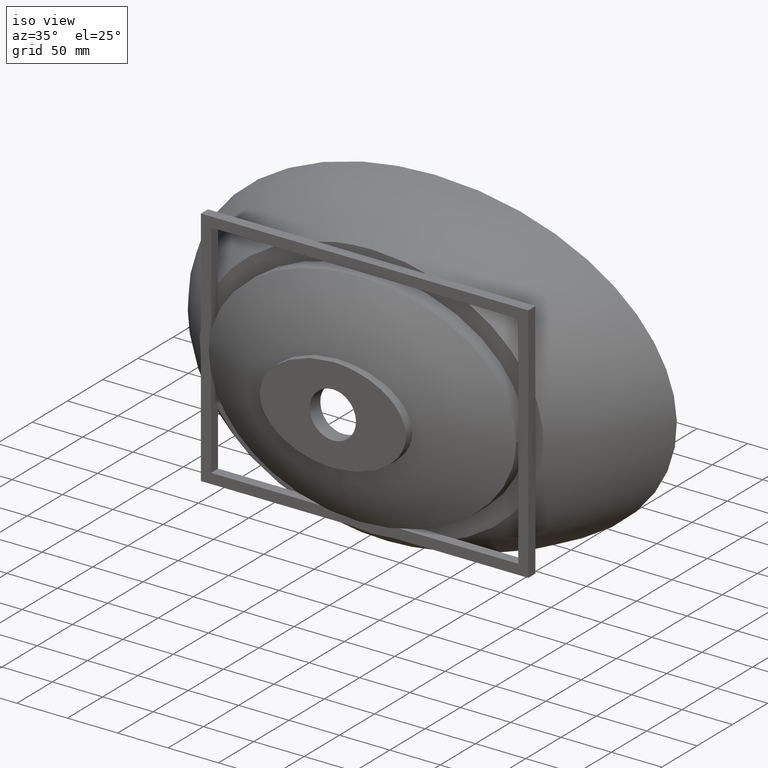
[diagram: clean part render]
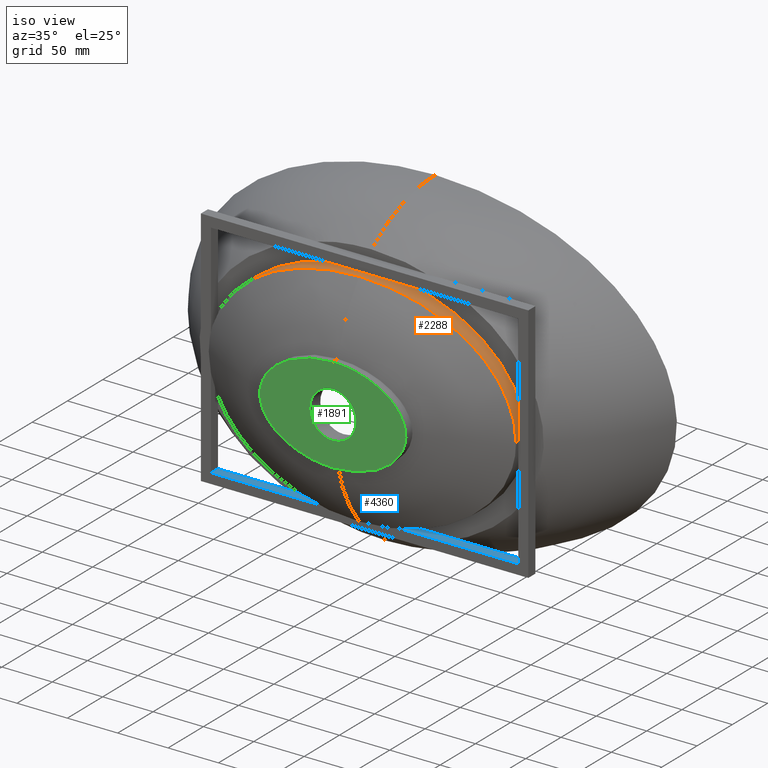
[diagram: same view with three faces highlighted in distinct colors, each labeled with its STEP entity id]
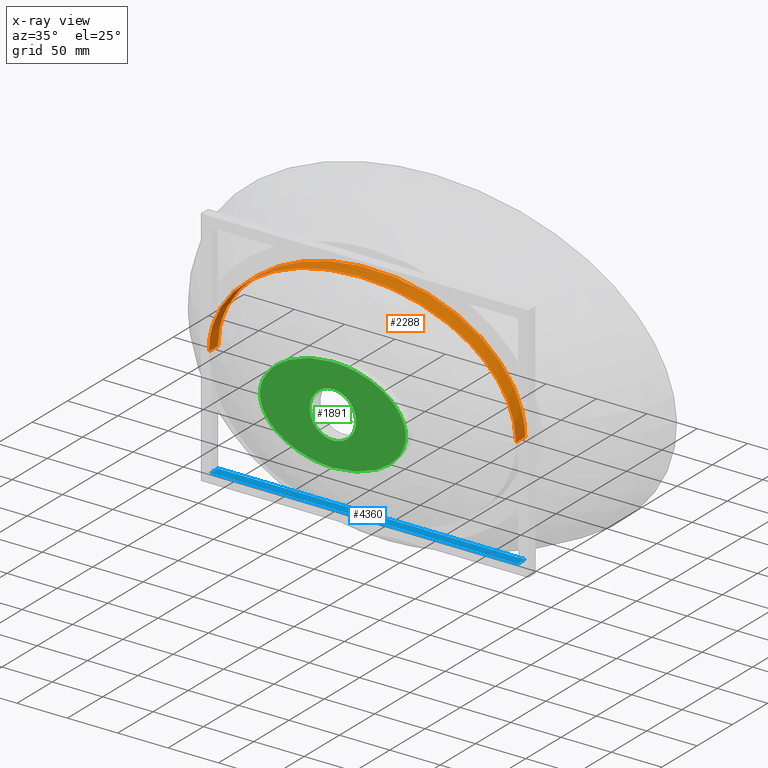
[diagram: x-ray of the same camera — body ghosted, the three highlighted faces saturated]
A machine part, iso view with three faces highlighted in distinct colors.
The next image is the same camera in x-ray (body ghosted, the three faces saturated) — at least one of them is partly hidden behind the body in this view.
Their STEP definitions:

[orange] entity #2288 — the highlighted face is a freeform B-spline surface patch.
#19 = CARTESIAN_POINT ( 'NONE',  ( -47.21094760882052600, -106.9539288248442500, 104.6452170759292500 ) ) ;
#34 = CARTESIAN_POINT ( 'NONE',  ( -102.8157293957905800, -105.0741573306559100, 81.31534038125737100 ) ) ;
#42 = CARTESIAN_POINT ( 'NONE',  ( -152.5000000000000000, -107.7114558978679600, 0.0000000000000000000 ) ) ;
#48 = CARTESIAN_POINT ( 'NONE',  ( -141.4467458287763000, -103.5170516779518100, 41.31846232177143500 ) ) ;
#66 = CARTESIAN_POINT ( 'NONE',  ( -152.4776760901988300, -103.1183717623395500, 2.174257026469797800 ) ) ;
#81 = CARTESIAN_POINT ( 'NONE',  ( 136.2205230772673300, -103.7245803052706100, 49.46187292888997400 ) ) ;
#98 = CARTESIAN_POINT ( 'NONE',  ( 113.2299427583061500, -104.6573816407069200, 73.77093452730190400 ) ) ;
#116 = CARTESIAN_POINT ( 'NONE',  ( 59.70084352162600500, -106.6061840035712900, 101.2729694608488000 ) ) ;
#137 = CARTESIAN_POINT ( 'NONE',  ( 4.334337529297746600, -107.5993585644402200, 109.9583377973702600 ) ) ;
#163 = VERTEX_POINT ( 'NONE', #1824 ) ;
#201 = B_SPLINE_CURVE_WITH_KNOTS ( 'NONE', 3,
 ( #3923, #3237, #1154, #3657, #1528, #4002, #1901, #4363, #2253, #81, #2616, #447, #2957, #820, #3319, #1168, #3670, #1545, #4016, #1914, #4377, #2273, #98, #2631, #467, #2974, #838, #3336, #1187, #3685, #1563, #4036, #1929, #4391, #2290, #116, #2644, #485, #2992, #856, #3350, #1207, #3706, #1581, #4051, #1951, #4410, #2304, #137, #2662, #504, #3007 ),
 .UNSPECIFIED., .F., .F.,
 ( 4, 2, 2, 2, 2, 2, 2, 2, 2, 2, 2, 2, 2, 2, 2, 2, 2, 2, 2, 2, 2, 2, 2, 2, 2, 4 ),
 ( 0.6218557091423927400, 0.6348088261114964700, 0.6477619430806003100, 0.6607150600497040400, 0.6736681770188077700, 0.6769064562610837000, 0.6801447355033596300, 0.6866212939879116100, 0.6930978524724634700, 0.6963361317147394000, 0.6995744109570153400, 0.7125275279261191800, 0.7254806448952231300, 0.7319572033797749900, 0.7384337618643269700, 0.7513868788334309200, 0.7578634373179828900, 0.7643399958025348700, 0.7772931127716387100, 0.7837696712561906800, 0.7902462297407426600, 0.8031993467098466100, 0.8161524636789504500, 0.8226290221635024200, 0.8258673014057784600, 0.8291055806480544000 ),
 .UNSPECIFIED. ) ;
#211 = EDGE_CURVE ( 'NONE', #4222, #4467, #3229, .T. ) ;
#263 = CARTESIAN_POINT ( 'NONE',  ( -152.5000000000000000, -90.00000000000000000, 0.0000000000000000000 ) ) ;
#384 = CARTESIAN_POINT ( 'NONE',  ( -59.73221709020792500, -106.6052472913845300, 101.2635639697474400 ) ) ;
#403 = CARTESIAN_POINT ( 'NONE',  ( -111.6001920501708900, -104.7231049065366100, 74.98831010379477400 ) ) ;
#417 = CARTESIAN_POINT ( 'NONE',  ( -145.2496828322798000, -103.3689984135023400, 33.57969500923717700 ) ) ;
#432 = CARTESIAN_POINT ( 'NONE',  ( -152.5000000000000000, -103.1179339888799100, -2.712701683365386100E-014 ) ) ;
#447 = CARTESIAN_POINT ( 'NONE',  ( 134.3128390181504700, -103.8007698096082500, 52.10545488534482700 ) ) ;
#467 = CARTESIAN_POINT ( 'NONE',  ( 102.7819091945179400, -105.0754729775269400, 81.33720297362180000 ) ) ;
#485 = CARTESIAN_POINT ( 'NONE',  ( 49.27295316640021400, -106.8982172220595900, 104.1124357507345300 ) ) ;
#504 = CARTESIAN_POINT ( 'NONE',  ( 1.083104370301572400, -107.6058209720354700, 109.9999999999999900 ) ) ;
#633 = CARTESIAN_POINT ( 'NONE',  ( -152.5000000000000000, -90.00000000000000000, 220.0000000000404200 ) ) ;
#657 = B_SPLINE_CURVE_WITH_KNOTS ( 'NONE', 3,
 ( #2854, #742, #3594, #1465, #3938, #1832, #4296, #2191, #19, #2553, #384, #2893, #761, #3255, #1110, #3611, #1481, #3956, #1851, #4313, #2209, #34, #2568, #403, #2910, #774, #3271, #1124, #3626, #1497, #3972, #1867, #4327, #2223, #48, #2582, #417, #2925, #788, #3287, #1141, #3643, #1512, #3987, #1885, #4344, #2237, #66, #2598, #432 ),
 .UNSPECIFIED., .F., .F.,
 ( 4, 2, 2, 2, 2, 2, 2, 2, 2, 2, 2, 2, 2, 2, 2, 2, 2, 2, 2, 2, 2, 2, 2, 2, 4 ),
 ( 0.0000000000000000000, 0.02594114682493809200, 0.03242643353117261000, 0.03891172023740711900, 0.05188229364987615600, 0.06485286706234520700, 0.07133815376857972900, 0.07782344047481423700, 0.09079401388728324000, 0.09727930059351774800, 0.1037645872997522400, 0.1167351607122212700, 0.1232204474184557800, 0.1297057341246903300, 0.1361910208309248200, 0.1426763075371593700, 0.1556468809496283600, 0.1686174543620974100, 0.1751027410683319000, 0.1783453844214491800, 0.1815880277745664200, 0.1945586011870354100, 0.2010438878932699300, 0.2042865312463871800, 0.2075291745995044000 ),
 .UNSPECIFIED. ) ;
#716 = EDGE_CURVE ( 'NONE', #163, #2989, #1478, .T. ) ;
#742 = CARTESIAN_POINT ( 'NONE',  ( -8.676512244503699700, -107.6058209720352500, 110.0000000000000100 ) ) ;
#749 = VECTOR ( 'NONE', #4414, 1000.000000000000000 ) ;
#761 = CARTESIAN_POINT ( 'NONE',  ( -67.94793277621840800, -106.3439447792996300, 98.49148686861001100 ) ) ;
#774 = CARTESIAN_POINT ( 'NONE',  ( -116.6431517802518400, -104.5173322539739200, 70.88357365802966100 ) ) ;
#785 = CARTESIAN_POINT ( 'NONE',  ( 152.5000000000000000, -110.0000000000000000, 1.347111479062088500E-014 ) ) ;
#788 = CARTESIAN_POINT ( 'NONE',  ( -146.9007280495855500, -103.3060746756643800, 29.55222393860068000 ) ) ;
#789 = EDGE_CURVE ( 'NONE', #2989, #4467, #4197, .T. ) ;
#804 = CARTESIAN_POINT ( 'NONE',  ( 152.4999999999999700, -103.1179339888799100, -2.028148956004923800E-011 ) ) ;
#820 = CARTESIAN_POINT ( 'NONE',  ( 131.6632380583510000, -103.9069083091808200, 55.53836592283718000 ) ) ;
#838 = CARTESIAN_POINT ( 'NONE',  ( 95.40884922777860300, -105.3588020330660700, 85.83040434643776000 ) ) ;
#856 = CARTESIAN_POINT ( 'NONE',  ( 42.94216134973313400, -107.0554426459462300, 105.5609591192645100 ) ) ;
#995 = CARTESIAN_POINT ( 'NONE',  ( 152.5000000000560500, -90.00000000000000000, 220.0000000000202100 ) ) ;
#1066 = ORIENTED_EDGE ( 'NONE', *, *, #789, .F. ) ;
#1110 = CARTESIAN_POINT ( 'NONE',  ( -74.01820938382819300, -106.1393472264828800, 96.18861272298015300 ) ) ;
#1124 = CARTESIAN_POINT ( 'NONE',  ( -121.4640201208732000, -104.3200127625210200, 66.53836821500826200 ) ) ;
#1141 = CARTESIAN_POINT ( 'NONE',  ( -148.0154038970343900, -103.2643725800580200, 26.50093839839103900 ) ) ;
#1154 = CARTESIAN_POINT ( 'NONE',  ( 152.1443245462052400, -103.1252960036092200, 8.637235796715513600 ) ) ;
#1168 = CARTESIAN_POINT ( 'NONE',  ( 127.4238688833118400, -104.0776083898679300, 60.46356866029361000 ) ) ;
#1184 = CARTESIAN_POINT ( 'NONE',  ( -152.5000000000000000, -90.00000000000000000, 0.0000000000000000000 ) ) ;
#1187 = CARTESIAN_POINT ( 'NONE',  ( 89.71204439020675600, -105.5734525107452000, 88.96895385205058900 ) ) ;
#1207 = CARTESIAN_POINT ( 'NONE',  ( 34.42921027590784200, -107.2422737976452400, 107.2070259430499000 ) ) ;
#1352 = CARTESIAN_POINT ( 'NONE',  ( 152.5000000000000000, -90.00000000000000000, -2.021035150178123300E-011 ) ) ;
#1465 = CARTESIAN_POINT ( 'NONE',  ( -28.04324115162153700, -107.3553623274767100, 108.1355673428161200 ) ) ;
#1478 = LINE ( 'NONE', #3671, #749 ) ;
#1481 = CARTESIAN_POINT ( 'NONE',  ( -83.93939597657498600, -105.7873049689716700, 91.90066293399441100 ) ) ;
#1497 = CARTESIAN_POINT ( 'NONE',  ( -126.0538980216587000, -104.1330771725551300, 61.93865218776821300 ) ) ;
#1512 = CARTESIAN_POINT ( 'NONE',  ( -150.7399929378285900, -103.1677465207586700, 17.20449692699166600 ) ) ;
#1528 = CARTESIAN_POINT ( 'NONE',  ( 149.7283907224696100, -103.2016190319381500, 21.30516012785558600 ) ) ;
#1545 = CARTESIAN_POINT ( 'NONE',  ( 123.6638840038082800, -104.2302835981276600, 64.37569192492019000 ) ) ;
#1563 = CARTESIAN_POINT ( 'NONE',  ( 79.98497554297956900, -105.9308092963599700, 93.71487022287003300 ) ) ;
#1581 = CARTESIAN_POINT ( 'NONE',  ( 21.58633281328593200, -107.4562118053617000, 108.9375904722939500 ) ) ;
#1705 = ORIENTED_EDGE ( 'NONE', *, *, #211, .T. ) ;
#1824 = CARTESIAN_POINT ( 'NONE',  ( -152.5000000000000000, -103.1179339888799100, -2.712701683365386100E-014 ) ) ;
#1832 = CARTESIAN_POINT ( 'NONE',  ( -34.46984672874642500, -107.2384302620420300, 107.1648464992287300 ) ) ;
#1851 = CARTESIAN_POINT ( 'NONE',  ( -91.64703560522517000, -105.5009884015446300, 87.93730495248478000 ) ) ;
#1867 = CARTESIAN_POINT ( 'NONE',  ( -131.8023748090430400, -103.9010944895151700, 55.46513832552796700 ) ) ;
#1885 = CARTESIAN_POINT ( 'NONE',  ( -152.0535377777324000, -103.1287824127465000, 8.685909458913247500 ) ) ;
#1901 = CARTESIAN_POINT ( 'NONE',  ( 145.3375724024504900, -103.3652841140806400, 33.56578649457423300 ) ) ;
#1914 = CARTESIAN_POINT ( 'NONE',  ( 121.3303298514614000, -104.3254992503073200, 66.64581802196875100 ) ) ;
#1929 = CARTESIAN_POINT ( 'NONE',  ( 71.96252654056350200, -106.2098077027540600, 96.99659850470108300 ) ) ;
#1951 = CARTESIAN_POINT ( 'NONE',  ( 10.81964250693972800, -107.5660306405004300, 109.7338984437282200 ) ) ;
#2191 = CARTESIAN_POINT ( 'NONE',  ( -42.99019720990384000, -107.0573845346477200, 105.5864160793444600 ) ) ;
#2209 = CARTESIAN_POINT ( 'NONE',  ( -97.29372879213666200, -105.2868884653572600, 84.72277817910553200 ) ) ;
#2223 = CARTESIAN_POINT ( 'NONE',  ( -139.2610785172215600, -103.6034789158861700, 45.00229953549508400 ) ) ;
#2237 = CARTESIAN_POINT ( 'NONE',  ( -152.3881539513957400, -103.1203959894361200, 4.350549441316229800 ) ) ;
#2253 = CARTESIAN_POINT ( 'NONE',  ( 139.2789920688459200, -103.6027621729884600, 44.97841484955407100 ) ) ;
#2271 = ORIENTED_EDGE ( 'NONE', *, *, #4196, .F. ) ;
#2273 = CARTESIAN_POINT ( 'NONE',  ( 116.5535588727159100, -104.5209043653406400, 71.03382807352173200 ) ) ;
#2288 = ADVANCED_FACE ( 'NONE', ( #3371 ), #3855, .T. ) ;
#2290 = CARTESIAN_POINT ( 'NONE',  ( 65.85836623636038200, -106.4119811033133900, 99.22695917087119700 ) ) ;
#2304 = CARTESIAN_POINT ( 'NONE',  ( 5.416464890457484100, -107.5955487044964500, 109.9333666819122500 ) ) ;
#2406 = DIRECTION ( 'NONE',  ( -0.0000000000000000000, 1.000000000000000000, -0.0000000000000000000 ) ) ;
#2462 = ORIENTED_EDGE ( 'NONE', *, *, #4124, .F. ) ;
#2553 = CARTESIAN_POINT ( 'NONE',  ( -55.58195125927349500, -106.7278618682454300, 102.4837657721602700 ) ) ;
#2568 = CARTESIAN_POINT ( 'NONE',  ( -106.3961657402937700, -104.9330908111283000, 78.88763881753172300 ) ) ;
#2582 = CARTESIAN_POINT ( 'NONE',  ( -144.3464476124809400, -103.4039359105354000, 35.54539787600448600 ) ) ;
#2598 = CARTESIAN_POINT ( 'NONE',  ( -152.4999999999999400, -103.1179339888795900, 1.086790460222202700 ) ) ;
#2616 = CARTESIAN_POINT ( 'NONE',  ( 135.5928204501816800, -103.7496238183420900, 50.35108296633379900 ) ) ;
#2631 = CARTESIAN_POINT ( 'NONE',  ( 106.3442002816259300, -104.9351485181515900, 78.92270733193807100 ) ) ;
#2644 = CARTESIAN_POINT ( 'NONE',  ( 55.55377050647419400, -106.7286727239066400, 102.4917489704871500 ) ) ;
#2662 = CARTESIAN_POINT ( 'NONE',  ( 2.168418855729685700, -107.6044946953325500, 109.9916544500752500 ) ) ;
#2768 = CARTESIAN_POINT ( 'NONE',  ( -152.5000000000000000, -107.7114558978679500, 220.0000000000404200 ) ) ;
#2817 = CARTESIAN_POINT ( 'NONE',  ( 152.5000000000000000, -90.00000000000000000, 1.347111479062088500E-014 ) ) ;
#2854 = CARTESIAN_POINT ( 'NONE',  ( -1.467507831434208200E-013, -107.6058209720354500, 110.0000000000000100 ) ) ;
#2893 = CARTESIAN_POINT ( 'NONE',  ( -65.90183468344145000, -106.4105833735043100, 99.21199856081429400 ) ) ;
#2910 = CARTESIAN_POINT ( 'NONE',  ( -113.3067431432306600, -104.6536091518684800, 73.64544273883366500 ) ) ;
#2925 = CARTESIAN_POINT ( 'NONE',  ( -146.5021393135017700, -103.3211793173533800, 30.56428555539846300 ) ) ;
#2957 = CARTESIAN_POINT ( 'NONE',  ( 133.6598730742947800, -103.8268996127023800, 52.97166395031433000 ) ) ;
#2974 = CARTESIAN_POINT ( 'NONE',  ( 97.27286558200900400, -105.2876857660061100, 84.73515037562256700 ) ) ;
#2989 = VERTEX_POINT ( 'NONE', #1184 ) ;
#2992 = CARTESIAN_POINT ( 'NONE',  ( 47.16929522320353400, -106.9523748883723500, 104.6180226975998400 ) ) ;
#3007 = CARTESIAN_POINT ( 'NONE',  ( -1.467507831434208200E-013, -107.6058209720354500, 110.0000000000000100 ) ) ;
#3129 = CARTESIAN_POINT ( 'NONE',  ( 152.5000000000560500, -107.7114558978679500, 220.0000000000202100 ) ) ;
#3229 = LINE ( 'NONE', #785, #3617 ) ;
#3237 = CARTESIAN_POINT ( 'NONE',  ( 152.5000000000011400, -103.1179339888813200, 4.345807120727315900 ) ) ;
#3255 = CARTESIAN_POINT ( 'NONE',  ( -72.00518466302543200, -106.2083566614544000, 96.98009667744038600 ) ) ;
#3271 = CARTESIAN_POINT ( 'NONE',  ( -118.2752929258622500, -104.4504605287348200, 69.46291978441627200 ) ) ;
#3287 = CARTESIAN_POINT ( 'NONE',  ( -147.6571339033850400, -103.2776782786321000, 27.52109228102632000 ) ) ;
#3319 = CARTESIAN_POINT ( 'NONE',  ( 130.2818708262735200, -103.9623764020314500, 57.20696758876280800 ) ) ;
#3336 = CARTESIAN_POINT ( 'NONE',  ( 91.62699707451351100, -105.5017411639504600, 87.94817456783776800 ) ) ;
#3350 = CARTESIAN_POINT ( 'NONE',  ( 40.81656469061390200, -107.1043965269272300, 105.9986859428960900 ) ) ;
#3371 = FACE_OUTER_BOUND ( 'NONE', #4632, .T. ) ;
#3491 = CARTESIAN_POINT ( 'NONE',  ( 152.5000000000000000, -107.7114558978679600, -2.021035150178123300E-011 ) ) ;
#3578 = CARTESIAN_POINT ( 'NONE',  ( -1.467507831434208200E-013, -107.6058209720354500, 110.0000000000000100 ) ) ;
#3594 = CARTESIAN_POINT ( 'NONE',  ( -17.30870294042426500, -107.5231098743388100, 109.4697902217282000 ) ) ;
#3611 = CARTESIAN_POINT ( 'NONE',  ( -80.00925420241006200, -105.9299317542742100, 93.70387288459406200 ) ) ;
#3617 = VECTOR ( 'NONE', #2406, 1000.000000000000000 ) ;
#3626 = CARTESIAN_POINT ( 'NONE',  ( -123.0206125037960000, -104.2564381094557600, 65.03447742259976400 ) ) ;
#3627 = CARTESIAN_POINT ( 'NONE',  ( -152.4999999999999700, -90.00000000000000000, 219.9999999999999700 ) ) ;
#3643 = CARTESIAN_POINT ( 'NONE',  ( -149.7065653852080500, -103.2024030942014600, 21.37710757107275900 ) ) ;
#3657 = CARTESIAN_POINT ( 'NONE',  ( 150.7585961419863200, -103.1671477129832100, 17.11692390235967300 ) ) ;
#3670 = CARTESIAN_POINT ( 'NONE',  ( 125.9472268137489000, -104.1374032859104400, 62.05156079667226300 ) ) ;
#3671 = CARTESIAN_POINT ( 'NONE',  ( -152.5000000000000000, -110.0000000000000000, 0.0000000000000000000 ) ) ;
#3685 = CARTESIAN_POINT ( 'NONE',  ( 83.91920468826069200, -105.7880423114165200, 91.91025834128694800 ) ) ;
#3706 = CARTESIAN_POINT ( 'NONE',  ( 30.15714869071390000, -107.3223801880023600, 107.8733437678833000 ) ) ;
#3711 = CARTESIAN_POINT ( 'NONE',  ( 152.4999999999999700, -90.00000000000000000, 219.9999999999999700 ) ) ;
#3725 = CARTESIAN_POINT ( 'NONE',  ( 152.5000000000000000, -90.00000000000000000, 1.347111479062088500E-014 ) ) ;
#3855 =( BOUNDED_SURFACE ( )  B_SPLINE_SURFACE ( 3, 1, ( 
 ( #42, #263 ),
 ( #2768, #633 ),
 ( #3129, #995 ),
 ( #3491, #1352 ) ),
 .UNSPECIFIED., .F., .F., .F. ) 
 B_SPLINE_SURFACE_WITH_KNOTS ( ( 4, 4 ),
 ( 2, 2 ),
 ( 0.0000000000000000000, 1.000000000000000000 ),
 ( 0.0000000000000000000, 1.000000000000000000 ),
 .UNSPECIFIED. ) 
 GEOMETRIC_REPRESENTATION_ITEM ( )  RATIONAL_B_SPLINE_SURFACE ( (
 ( 1.000000000000000000, 1.000000000000000000),
 ( 0.3333333333332720900, 0.3333333333332720900),
 ( 0.3333333333332720900, 0.3333333333332720900),
 ( 1.000000000000000000, 1.000000000000000000) ) ) 
 REPRESENTATION_ITEM ( '' )  SURFACE ( )  );
#3923 = CARTESIAN_POINT ( 'NONE',  ( 152.4999999999999700, -103.1179339888799100, -2.028148956004923800E-011 ) ) ;
#3938 = CARTESIAN_POINT ( 'NONE',  ( -30.18734356749832800, -107.3184662364017200, 107.8349196490530100 ) ) ;
#3956 = CARTESIAN_POINT ( 'NONE',  ( -89.73150866602331600, -105.5727261242892500, 88.95874003686961400 ) ) ;
#3972 = CARTESIAN_POINT ( 'NONE',  ( -127.5327798341146800, -104.0732061276086700, 60.34385317641725500 ) ) ;
#3987 = CARTESIAN_POINT ( 'NONE',  ( -151.7880706166286900, -103.1360375939584600, 10.83003607538460100 ) ) ;
#4002 = CARTESIAN_POINT ( 'NONE',  ( 147.0011724676383800, -103.3015216562842700, 29.57960097385453900 ) ) ;
#4016 = CARTESIAN_POINT ( 'NONE',  ( 122.8912787242001800, -104.2617758046688200, 65.14078094661049100 ) ) ;
#4032 = VERTEX_POINT ( 'NONE', #3578 ) ;
#4036 = CARTESIAN_POINT ( 'NONE',  ( 73.98223537351225300, -106.1405900708974200, 96.20306309105777100 ) ) ;
#4051 = CARTESIAN_POINT ( 'NONE',  ( 17.28757588546072900, -107.5099272707323600, 109.3354937477629500 ) ) ;
#4084 = CARTESIAN_POINT ( 'NONE',  ( -152.5000000000000000, -90.00000000000000000, 0.0000000000000000000 ) ) ;
#4124 = EDGE_CURVE ( 'NONE', #4032, #163, #657, .T. ) ;
#4196 = EDGE_CURVE ( 'NONE', #4222, #4032, #201, .T. ) ;
#4197 =( BOUNDED_CURVE ( )  B_SPLINE_CURVE ( 3, ( #4084, #3627, #3711, #3725 ),
 .UNSPECIFIED., .F., .T. ) 
 B_SPLINE_CURVE_WITH_KNOTS ( ( 4, 4 ),
 ( 0.0000000000000000000, 3.141592653589793100 ),
 .UNSPECIFIED. ) 
 CURVE ( )  GEOMETRIC_REPRESENTATION_ITEM ( )  RATIONAL_B_SPLINE_CURVE ( ( 1.000000000000000000, 0.3333333333333333700, 0.3333333333333333700, 1.000000000000000000 ) ) 
 REPRESENTATION_ITEM ( '' )  );
#4222 = VERTEX_POINT ( 'NONE', #804 ) ;
#4296 = CARTESIAN_POINT ( 'NONE',  ( -36.60775227221368800, -107.1952930823369300, 106.7954215232997100 ) ) ;
#4313 = CARTESIAN_POINT ( 'NONE',  ( -95.42776636193085000, -105.3580823767956600, 85.81945583805487800 ) ) ;
#4327 = CARTESIAN_POINT ( 'NONE',  ( -134.4390410526892500, -103.7955331075263200, 52.07573317691964100 ) ) ;
#4342 = ORIENTED_EDGE ( 'NONE', *, *, #716, .F. ) ;
#4344 = CARTESIAN_POINT ( 'NONE',  ( -152.3208382533243000, -103.1219859778414600, 5.439603625312035000 ) ) ;
#4363 = CARTESIAN_POINT ( 'NONE',  ( 141.4767843117024900, -103.5158686187347000, 41.26493347539426500 ) ) ;
#4377 = CARTESIAN_POINT ( 'NONE',  ( 120.5411826499896600, -104.3577630484618800, 67.38659972899638700 ) ) ;
#4391 = CARTESIAN_POINT ( 'NONE',  ( 67.90034263350770500, -106.3455091465667700, 98.50859021249483800 ) ) ;
#4410 = CARTESIAN_POINT ( 'NONE',  ( 8.660360181428632800, -107.5806273794008000, 109.8335786872853200 ) ) ;
#4414 = DIRECTION ( 'NONE',  ( -0.0000000000000000000, 1.000000000000000000, -0.0000000000000000000 ) ) ;
#4467 = VERTEX_POINT ( 'NONE', #2817 ) ;
#4632 = EDGE_LOOP ( 'NONE', ( #2271, #1705, #1066, #4342, #2462 ) ) ;

[blue] entity #4360 — the highlighted planar face has unit normal (0, 0, -1).
#152 = DIRECTION ( 'NONE',  ( -1.000000000000000000, 0.0000000000000000000, -0.0000000000000000000 ) ) ;
#319 = VERTEX_POINT ( 'NONE', #4107 ) ;
#589 = VECTOR ( 'NONE', #3822, 1000.000000000000000 ) ;
#616 = VERTEX_POINT ( 'NONE', #4533 ) ;
#631 = EDGE_CURVE ( 'NONE', #616, #319, #1811, .T. ) ;
#654 = LINE ( 'NONE', #1428, #1853 ) ;
#753 = CARTESIAN_POINT ( 'NONE',  ( -152.5000000000000000, -99.99999999999998600, -110.0000000000000000 ) ) ;
#858 = VECTOR ( 'NONE', #3688, 1000.000000000000000 ) ;
#964 = EDGE_LOOP ( 'NONE', ( #1640, #2047, #1233, #4355 ) ) ;
#1002 = VERTEX_POINT ( 'NONE', #2184 ) ;
#1233 = ORIENTED_EDGE ( 'NONE', *, *, #3264, .F. ) ;
#1428 = CARTESIAN_POINT ( 'NONE',  ( -152.5000000000000000, -99.99999999999998600, -110.0000000000000000 ) ) ;
#1640 = ORIENTED_EDGE ( 'NONE', *, *, #2562, .T. ) ;
#1811 = LINE ( 'NONE', #4160, #858 ) ;
#1842 = AXIS2_PLACEMENT_3D ( 'NONE', #1966, #3369, #152 ) ;
#1853 = VECTOR ( 'NONE', #2155, 1000.000000000000000 ) ;
#1966 = CARTESIAN_POINT ( 'NONE',  ( -152.5000000000000000, -99.99999999999998600, -110.0000000000000000 ) ) ;
#2047 = ORIENTED_EDGE ( 'NONE', *, *, #3876, .F. ) ;
#2155 = DIRECTION ( 'NONE',  ( 0.0000000000000000000, 1.000000000000000000, 0.0000000000000000000 ) ) ;
#2184 = CARTESIAN_POINT ( 'NONE',  ( -152.5000000000000000, -90.00000000000000000, -110.0000000000000000 ) ) ;
#2320 = PLANE ( 'NONE',  #1842 ) ;
#2562 = EDGE_CURVE ( 'NONE', #319, #1002, #3918, .T. ) ;
#2882 = DIRECTION ( 'NONE',  ( -1.000000000000000000, -0.0000000000000000000, -0.0000000000000000000 ) ) ;
#2943 = LINE ( 'NONE', #753, #3869 ) ;
#3264 = EDGE_CURVE ( 'NONE', #616, #4456, #2943, .T. ) ;
#3369 = DIRECTION ( 'NONE',  ( 0.0000000000000000000, 0.0000000000000000000, -1.000000000000000000 ) ) ;
#3688 = DIRECTION ( 'NONE',  ( 0.0000000000000000000, 1.000000000000000000, 0.0000000000000000000 ) ) ;
#3822 = DIRECTION ( 'NONE',  ( -1.000000000000000000, -0.0000000000000000000, -0.0000000000000000000 ) ) ;
#3869 = VECTOR ( 'NONE', #2882, 1000.000000000000000 ) ;
#3876 = EDGE_CURVE ( 'NONE', #4456, #1002, #654, .T. ) ;
#3918 = LINE ( 'NONE', #4176, #589 ) ;
#4066 = CARTESIAN_POINT ( 'NONE',  ( -152.5000000000000000, -99.99999999999998600, -110.0000000000000000 ) ) ;
#4107 = CARTESIAN_POINT ( 'NONE',  ( 152.5000000000000600, -90.00000000000000000, -110.0000000000000000 ) ) ;
#4160 = CARTESIAN_POINT ( 'NONE',  ( 152.5000000000000600, -99.99999999999998600, -110.0000000000000000 ) ) ;
#4176 = CARTESIAN_POINT ( 'NONE',  ( -152.5000000000000000, -90.00000000000000000, -110.0000000000000000 ) ) ;
#4179 = FACE_OUTER_BOUND ( 'NONE', #964, .T. ) ;
#4355 = ORIENTED_EDGE ( 'NONE', *, *, #631, .T. ) ;
#4360 = ADVANCED_FACE ( 'NONE', ( #4179 ), #2320, .F. ) ;
#4456 = VERTEX_POINT ( 'NONE', #4066 ) ;
#4533 = CARTESIAN_POINT ( 'NONE',  ( 152.5000000000000600, -99.99999999999998600, -110.0000000000000000 ) ) ;

[green] entity #1891 — the highlighted planar face has unit normal (0, -1, 0).
#49 = B_SPLINE_CURVE_WITH_KNOTS ( 'NONE', 3,
 ( #1170, #4443, #4130, #4472, #4231, #3452, #3612, #3239, #3222, #3256, #3795, #4513, #3062, #3115, #2996, #3337, #3311 ),
 .UNSPECIFIED., .F., .F.,
 ( 4, 1, 1, 1, 1, 1, 1, 1, 1, 1, 1, 1, 1, 1, 4 ),
 ( 0.0000000000000000000, 0.006249999999988156500, 0.008333333333317394600, 0.04166666666658708200, 0.08333333333317427500, 0.1249999999997612500, 0.1666666666663484400, 0.2083333333329356300, 0.2499999999995225500, 0.2916666666661098000, 0.3333333333326969900, 0.3749999999992842400, 0.4166666666658711500, 0.4583333333324583500, 0.5000000000000294200 ),
 .UNSPECIFIED. ) ;
#79 = CARTESIAN_POINT ( 'NONE',  ( 8.493155587964624300, -144.9999999999999700, 47.27989419102795700 ) ) ;
#87 = CARTESIAN_POINT ( 'NONE',  ( 0.7136964953724005400, -144.9999999999999700, 22.99133516299608400 ) ) ;
#100 = VERTEX_POINT ( 'NONE', #1769 ) ;
#261 = CARTESIAN_POINT ( 'NONE',  ( -2.656295322589485900E-015, -144.9999999999999700, 23.00000000000000700 ) ) ;
#285 = B_SPLINE_CURVE_WITH_KNOTS ( 'NONE', 3,
 ( #4341, #2596, #430, #2937, #801, #3301, #1152, #3655, #1526, #4000, #1899, #4359, #2250, #79, #2614, #444, #2955 ),
 .UNSPECIFIED., .F., .F.,
 ( 4, 1, 1, 1, 1, 1, 1, 1, 1, 1, 1, 1, 1, 1, 4 ),
 ( 0.5000000000000294200, 0.5416666666657916600, 0.5833333333325377800, 0.6249999999992841300, 0.6666666666660303600, 0.7083333333327763700, 0.7499999999995226000, 0.7916666666662688400, 0.8333333333330151800, 0.8749999999997613000, 0.9166666666665075300, 0.9583333333332537700, 0.9916666666666508200, 0.9937499999999881400, 1.000000000000000000 ),
 .UNSPECIFIED. ) ;
#425 = CARTESIAN_POINT ( 'NONE',  ( 20.06579618222135200, -144.9999999999999700, -11.76226989751439300 ) ) ;
#430 = CARTESIAN_POINT ( 'NONE',  ( 18.88937866118248400, -145.0000000000000000, -46.33079479848795000 ) ) ;
#444 = CARTESIAN_POINT ( 'NONE',  ( 0.9444689330692932500, -144.9999999999999700, 47.50000000000002100 ) ) ;
#682 = CARTESIAN_POINT ( 'NONE',  ( 20.06579618222135900, -145.0000000000000000, 11.76226989751439500 ) ) ;
#715 = CARTESIAN_POINT ( 'NONE',  ( 11.76226989751439500, -145.0000000000000000, 20.06579618222135900 ) ) ;
#754 = CARTESIAN_POINT ( 'NONE',  ( 23.28882790013081900, -144.9999999999999400, -5.421010862427522200E-015 ) ) ;
#768 = CARTESIAN_POINT ( 'NONE',  ( 22.42234419973836200, -144.9999999999999700, 6.117398531763477400 ) ) ;
#801 = CARTESIAN_POINT ( 'NONE',  ( 51.48195175328818600, -144.9999999999999400, -33.88269844100239700 ) ) ;
#887 = EDGE_CURVE ( 'NONE', #1692, #2908, #49, .T. ) ;
#1128 = ORIENTED_EDGE ( 'NONE', *, *, #2719, .T. ) ;
#1152 = CARTESIAN_POINT ( 'NONE',  ( 70.68520104247778600, -144.9999999999999100, -12.48966150610928200 ) ) ;
#1167 = DIRECTION ( 'NONE',  ( -1.960414540453382200E-015, 0.0000000000000000000, 1.000000000000000000 ) ) ;
#1170 = CARTESIAN_POINT ( 'NONE',  ( -5.068645156369733200E-014, -144.9999999999999700, 47.50000000000000000 ) ) ;
#1171 = DIRECTION ( 'NONE',  ( 0.0000000000000000000, -1.000000000000000000, 0.0000000000000000000 ) ) ;
#1186 = PLANE ( 'NONE',  #1996 ) ;
#1205 = EDGE_CURVE ( 'NONE', #100, #2852, #1447, .T. ) ;
#1337 = CARTESIAN_POINT ( 'NONE',  ( -2.656295322589485900E-015, -144.9999999999999700, 23.00000000000000700 ) ) ;
#1356 = CARTESIAN_POINT ( 'NONE',  ( 2.750466703463495800, -144.9999999999999700, 22.89145991336859600 ) ) ;
#1447 = B_SPLINE_CURVE_WITH_KNOTS ( 'NONE', 3,
 ( #3835, #2784, #1757, #1590, #3247, #425, #3484, #754, #768, #682, #2546, #715, #3325, #1356, #87, #2231, #1337 ),
 .UNSPECIFIED., .F., .F.,
 ( 4, 1, 1, 1, 1, 1, 1, 1, 1, 1, 1, 1, 1, 1, 4 ),
 ( 0.5000000000000008900, 0.5416666666657655700, 0.5833333333325140300, 0.6249999999992627000, 0.6666666666660112700, 0.7083333333327598300, 0.7499999999995083900, 0.7916666666662570700, 0.8333333333330056300, 0.8749999999997542000, 0.9166666666665028700, 0.9583333333332514400, 0.9916666666666502600, 0.9937499999999877000, 1.000000000000000000 ),
 .UNSPECIFIED. ) ;
#1526 = CARTESIAN_POINT ( 'NONE',  ( 70.68520104250538300, -144.9999999999999700, 12.48966150610902500 ) ) ;
#1590 = CARTESIAN_POINT ( 'NONE',  ( 11.76226989751439900, -145.0000000000000000, -20.06579618222134800 ) ) ;
#1631 = EDGE_CURVE ( 'NONE', #2852, #100, #2136, .T. ) ;
#1692 = VERTEX_POINT ( 'NONE', #1889 ) ;
#1754 = CARTESIAN_POINT ( 'NONE',  ( -2.656295322589485900E-015, -144.9999999999999700, 23.00000000000000700 ) ) ;
#1757 = CARTESIAN_POINT ( 'NONE',  ( 6.117398531719088000, -145.0000000000000000, -22.42234419975688900 ) ) ;
#1769 = CARTESIAN_POINT ( 'NONE',  ( -4.808496517551456300E-011, -145.0000000000000300, -23.00000000000000000 ) ) ;
#1800 = CARTESIAN_POINT ( 'NONE',  ( -4.808496517551456300E-011, -145.0000000000000300, -23.00000000000000000 ) ) ;
#1806 = CARTESIAN_POINT ( 'NONE',  ( -2.039132843969220700, -145.0000000000000300, -22.99999999999319300 ) ) ;
#1812 = CARTESIAN_POINT ( 'NONE',  ( -6.117398531807872100, -145.0000000000000000, -22.42234419971982000 ) ) ;
#1821 = CARTESIAN_POINT ( 'NONE',  ( -11.76226989751439000, -144.9999999999999700, -20.06579618222134400 ) ) ;
#1826 = CARTESIAN_POINT ( 'NONE',  ( -16.46208693124018700, -144.9999999999999700, -16.46208693124019000 ) ) ;
#1831 = CARTESIAN_POINT ( 'NONE',  ( -20.06579618222134400, -145.0000000000000000, -11.76226989751440200 ) ) ;
#1837 = CARTESIAN_POINT ( 'NONE',  ( -22.42234419973835500, -145.0000000000000000, -6.117398531763482700 ) ) ;
#1843 = CARTESIAN_POINT ( 'NONE',  ( -23.28882790013081900, -145.0000000000000000, -3.686287386450715100E-015 ) ) ;
#1850 = CARTESIAN_POINT ( 'NONE',  ( -22.42234419973835500, -145.0000000000000000, 6.117398531763476500 ) ) ;
#1857 = CARTESIAN_POINT ( 'NONE',  ( -20.06579618222134400, -145.0000000000000300, 11.76226989751440000 ) ) ;
#1861 = CARTESIAN_POINT ( 'NONE',  ( -16.46208693124018700, -145.0000000000000000, 16.46208693124019000 ) ) ;
#1866 = CARTESIAN_POINT ( 'NONE',  ( -11.76226989751439300, -144.9999999999999700, 20.06579618222134400 ) ) ;
#1874 = CARTESIAN_POINT ( 'NONE',  ( -6.493723289480208800, -144.9999999999999700, 22.26524099857055800 ) ) ;
#1878 = CARTESIAN_POINT ( 'NONE',  ( -2.750466703463506400, -144.9999999999999100, 22.89145991336859300 ) ) ;
#1882 = CARTESIAN_POINT ( 'NONE',  ( -2.088812966310845500E-010, -145.0000000000000300, -47.50000000000001400 ) ) ;
#1884 = CARTESIAN_POINT ( 'NONE',  ( -0.7136964953724115300, -144.9999999999999700, 22.99133516299608000 ) ) ;
#1889 = CARTESIAN_POINT ( 'NONE',  ( -5.068645156369733200E-014, -144.9999999999999700, 47.50000000000000000 ) ) ;
#1891 = ADVANCED_FACE ( 'NONE', ( #2703, #4406 ), #1186, .T. ) ;
#1899 = CARTESIAN_POINT ( 'NONE',  ( 51.48195175336477500, -144.9999999999999700, 33.88269844100048500 ) ) ;
#1900 = CARTESIAN_POINT ( 'NONE',  ( -2.656295322589485900E-015, -144.9999999999999700, 23.00000000000000700 ) ) ;
#1904 = CARTESIAN_POINT ( 'NONE',  ( -0.3058699265881809100, -144.9999999999999700, 23.00000000000000700 ) ) ;
#1980 = ORIENTED_EDGE ( 'NONE', *, *, #1631, .F. ) ;
#1996 = AXIS2_PLACEMENT_3D ( 'NONE', #1754, #1171, #1167 ) ;
#2052 = ORIENTED_EDGE ( 'NONE', *, *, #887, .T. ) ;
#2136 = B_SPLINE_CURVE_WITH_KNOTS ( 'NONE', 3,
 ( #1900, #1904, #1884, #1878, #1874, #1866, #1861, #1857, #1850, #1843, #1837, #1831, #1826, #1821, #1812, #1806, #1800 ),
 .UNSPECIFIED., .F., .F.,
 ( 4, 1, 1, 1, 1, 1, 1, 1, 1, 1, 1, 1, 1, 1, 4 ),
 ( 0.0000000000000000000, 0.006249999999987800000, 0.008333333333316919300, 0.04166666666658470900, 0.08333333333316952900, 0.1249999999997541100, 0.1666666666663389500, 0.2083333333329237300, 0.2499999999995082800, 0.2916666666660931400, 0.3333333333326780100, 0.3749999999992628100, 0.4166666666658473400, 0.4583333333324322000, 0.5000000000000008900 ),
 .UNSPECIFIED. ) ;
#2231 = CARTESIAN_POINT ( 'NONE',  ( 0.3058699265881701900, -144.9999999999999700, 23.00000000000000700 ) ) ;
#2250 = CARTESIAN_POINT ( 'NONE',  ( 20.05447311001831100, -145.0000000000000000, 46.00727562894549300 ) ) ;
#2546 = CARTESIAN_POINT ( 'NONE',  ( 16.46208693124019700, -145.0000000000000000, 16.46208693124019700 ) ) ;
#2596 = CARTESIAN_POINT ( 'NONE',  ( 6.296459553582319100, -145.0000000000000300, -47.50000000001230700 ) ) ;
#2614 = CARTESIAN_POINT ( 'NONE',  ( 2.203760843828441300, -144.9999999999999700, 47.48246192197684200 ) ) ;
#2703 = FACE_OUTER_BOUND ( 'NONE', #4079, .T. ) ;
#2719 = EDGE_CURVE ( 'NONE', #2908, #1692, #285, .T. ) ;
#2784 = CARTESIAN_POINT ( 'NONE',  ( 2.039132843873100200, -145.0000000000000300, -23.00000000000681100 ) ) ;
#2852 = VERTEX_POINT ( 'NONE', #261 ) ;
#2908 = VERTEX_POINT ( 'NONE', #1882 ) ;
#2937 = CARTESIAN_POINT ( 'NONE',  ( 36.36579539074183700, -145.0000000000000000, -41.47800725583755400 ) ) ;
#2955 = CARTESIAN_POINT ( 'NONE',  ( -5.068645156369733200E-014, -144.9999999999999700, 47.50000000000000000 ) ) ;
#2996 = CARTESIAN_POINT ( 'NONE',  ( -18.88937866159133300, -145.0000000000000300, -46.33079479841799800 ) ) ;
#3062 = CARTESIAN_POINT ( 'NONE',  ( -51.48195175341993500, -145.0000000000000000, -33.88269844099664900 ) ) ;
#3115 = CARTESIAN_POINT ( 'NONE',  ( -36.36579539091951600, -145.0000000000000000, -41.47800725583136500 ) ) ;
#3222 = CARTESIAN_POINT ( 'NONE',  ( -70.68520104248395300, -145.0000000000000300, 12.48966150610759700 ) ) ;
#3239 = CARTESIAN_POINT ( 'NONE',  ( -63.18175680753657300, -145.0000000000000300, 24.00514091005664600 ) ) ;
#3247 = CARTESIAN_POINT ( 'NONE',  ( 16.46208693124019400, -144.9999999999999700, -16.46208693124019000 ) ) ;
#3256 = CARTESIAN_POINT ( 'NONE',  ( -73.40739947875121600, -145.0000000000000300, -1.085105327976108500E-013 ) ) ;
#3301 = CARTESIAN_POINT ( 'NONE',  ( 63.18175680750895400, -144.9999999999999700, -24.00514091005969800 ) ) ;
#3311 = CARTESIAN_POINT ( 'NONE',  ( -2.088812966310845500E-010, -145.0000000000000300, -47.50000000000001400 ) ) ;
#3325 = CARTESIAN_POINT ( 'NONE',  ( 6.493723289480201700, -145.0000000000000000, 22.26524099857056900 ) ) ;
#3337 = CARTESIAN_POINT ( 'NONE',  ( -6.296459554008956500, -145.0000000000000300, -47.49999999998773600 ) ) ;
#3452 = CARTESIAN_POINT ( 'NONE',  ( -36.36579539082463000, -144.9999999999999700, 41.47800725583368800 ) ) ;
#3484 = CARTESIAN_POINT ( 'NONE',  ( 22.42234419973835500, -144.9999999999999400, -6.117398531763478300 ) ) ;
#3612 = CARTESIAN_POINT ( 'NONE',  ( -51.48195175334338800, -145.0000000000000000, 33.88269844099851700 ) ) ;
#3655 = CARTESIAN_POINT ( 'NONE',  ( 73.40739947875425700, -144.9999999999999100, 7.340765965845642800E-014 ) ) ;
#3795 = CARTESIAN_POINT ( 'NONE',  ( -70.68520104251149400, -145.0000000000000300, -12.48966150610739600 ) ) ;
#3835 = CARTESIAN_POINT ( 'NONE',  ( -4.808496517551456300E-011, -145.0000000000000300, -23.00000000000000000 ) ) ;
#4000 = CARTESIAN_POINT ( 'NONE',  ( 63.18175680756259300, -144.9999999999999700, 24.00514091005861100 ) ) ;
#4079 = EDGE_LOOP ( 'NONE', ( #2052, #1128 ) ) ;
#4130 = CARTESIAN_POINT ( 'NONE',  ( -2.203760843828513700, -144.9999999999999700, 47.48246192197675000 ) ) ;
#4231 = CARTESIAN_POINT ( 'NONE',  ( -20.05447311001473000, -144.9999999999999700, 46.00727562894462600 ) ) ;
#4341 = CARTESIAN_POINT ( 'NONE',  ( -2.088812966310845500E-010, -145.0000000000000300, -47.50000000000001400 ) ) ;
#4359 = CARTESIAN_POINT ( 'NONE',  ( 36.36579539083680900, -145.0000000000000000, 41.47800725583522300 ) ) ;
#4406 = FACE_BOUND ( 'NONE', #4507, .T. ) ;
#4443 = CARTESIAN_POINT ( 'NONE',  ( -0.9444689330694113800, -144.9999999999999700, 47.49999999999997200 ) ) ;
#4472 = CARTESIAN_POINT ( 'NONE',  ( -8.493155587964182000, -144.9999999999999100, 47.27989419102758700 ) ) ;
#4507 = EDGE_LOOP ( 'NONE', ( #1980, #4546 ) ) ;
#4513 = CARTESIAN_POINT ( 'NONE',  ( -63.18175680759014100, -145.0000000000000000, -24.00514091005560900 ) ) ;
#4546 = ORIENTED_EDGE ( 'NONE', *, *, #1205, .F. ) ;